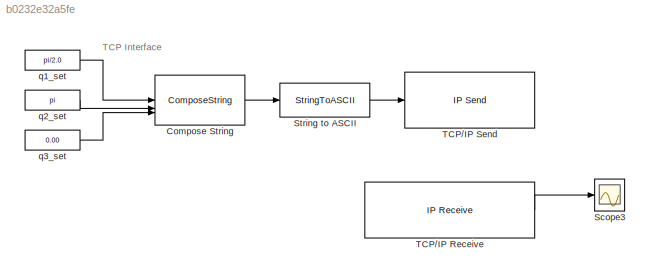
MODEL slx_b0232e32a5fe
KIND model
CONFIG AbsTol = auto
CONFIG EnableMultiTasking = off
CONFIG FixedStep = auto
CONFIG MaxStep = auto
CONFIG MinStep = auto
CONFIG RelTol = 1e-3
CONFIG SampleTimeConstraint = Unconstrained
CONFIG SolverName = VariableStepAuto
CONFIG StartTime = 0.0
CONFIG StopTime = 10.0
BLOCK [ComposeString] Compose String
  Format = "%f,%f,%f"
BLOCK [Scope] Scope3
  Floating = off
  NumInputPorts = 1
  ScopeSpecificationString = Simulink.scopes.TimeScopeBlockCfg('CurrentConfiguration', extmgr.ConfigurationSet(extmgr.Configuration('Core','General UI',true,'FigureColor',[1 1 1]),extmgr.Configuration('Core','Source UI',true),extmgr.Configuration('Sources','WiredSimulink',true,'DataLoggingVariableName','ScopeData3'),extmgr.Configuration('Visuals','Time Domain',true,'SerializedDisplays',{struct('MinYLimReal','-0.000007','MaxYL...<+1823ch>
BLOCK [StringToASCII] String to ASCII
BLOCK [Reference] TCP//IP Receive  REF=instrumentlib/TCP//IP Receive
  SourceBlock = instrumentlib/TCP//IP Receive
  SourceType = instrument.system.TCPIPReceive
BLOCK [Reference] TCP//IP Send  REF=instrumentlib/TCP//IP Send
  SourceBlock = instrumentlib/TCP//IP Send
  SourceType = instrument.system.TCPIPSend
BLOCK [Constant] q1_set
  NameLocation = left
  Value = pi/2.0
BLOCK [Constant] q2_set
  NameLocation = left
  Value = pi
BLOCK [Constant] q3_set
  NameLocation = left
  Value = 0.00
ANNOTATION (root): TCP Interface
LINE Compose String:1 -> String to ASCII:1
LINE String to ASCII:1 -> TCP//IP Send:1
LINE TCP//IP Receive:1 -> Scope3:1
LINE q1_set:1 -> Compose String:1
LINE q2_set:1 -> Compose String:2
LINE q3_set:1 -> Compose String:3
